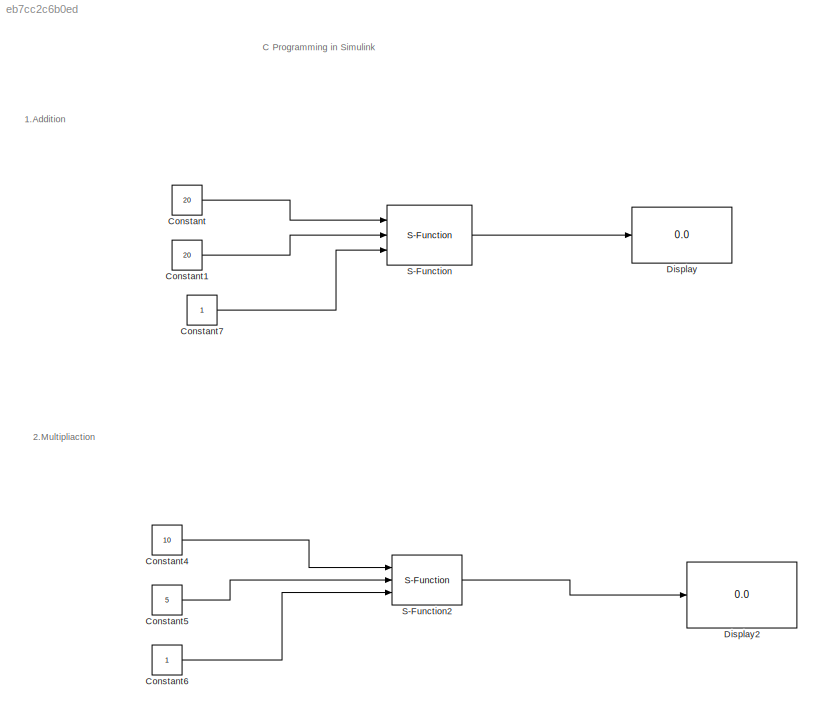
MODEL slx_eb7cc2c6b0ed
KIND model
CONFIG AbsTol = auto
CONFIG EnableMultiTasking = off
CONFIG FixedStep = auto
CONFIG MaxStep = auto
CONFIG MinStep = auto
CONFIG RelTol = 1e-3
CONFIG SampleTimeConstraint = Unconstrained
CONFIG Solver = VariableStepAuto
CONFIG SolverName = VariableStepAuto
CONFIG StartTime = 0.0
CONFIG StopTime = 10.0
BLOCK [Constant] Constant
  Value = 20
BLOCK [Constant] Constant1
  Value = 20
BLOCK [Constant] Constant4
  Value = 10
BLOCK [Constant] Constant5
  Value = 5
BLOCK [Constant] Constant6
BLOCK [Constant] Constant7
BLOCK [Display] Display
  Decimation = 1
  Ports = [1]
BLOCK [Display] Display2
  Decimation = 1
  Ports = [1]
BLOCK [S-Function] S-Function
  EnableBusSupport = off
  FunctionName = swapnil
  Ports = [3, 1]
  SFcnIsStateOwnerBlock = off
  SFunctionDeploymentMode = off
BLOCK [S-Function] S-Function2
  EnableBusSupport = off
  FunctionName = swapnil
  Ports = [3, 1]
  SFcnIsStateOwnerBlock = off
  SFunctionDeploymentMode = off
ANNOTATION (root): C Programming in Simulink
ANNOTATION (root): 1. Addition
ANNOTATION (root): 2.Multipliaction
LINE Constant1:1 -> S-Function:2
LINE Constant4:1 -> S-Function2:1
LINE Constant5:1 -> S-Function2:2
LINE Constant6:1 -> S-Function2:3
LINE Constant7:1 -> S-Function:3
LINE Constant:1 -> S-Function:1
LINE S-Function2:1 -> Display2:1
LINE S-Function:1 -> Display:1
